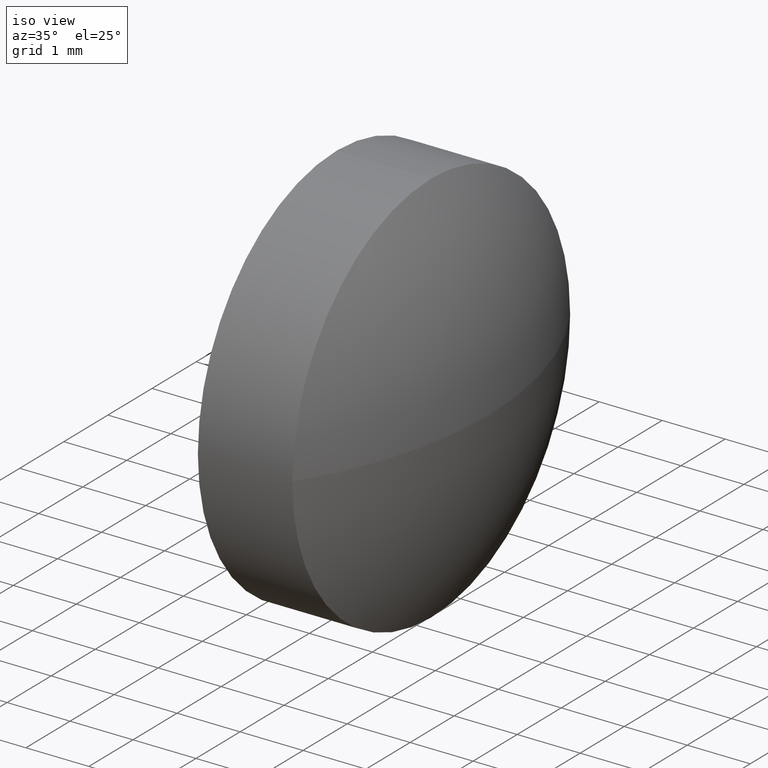
[diagram: clean part render]
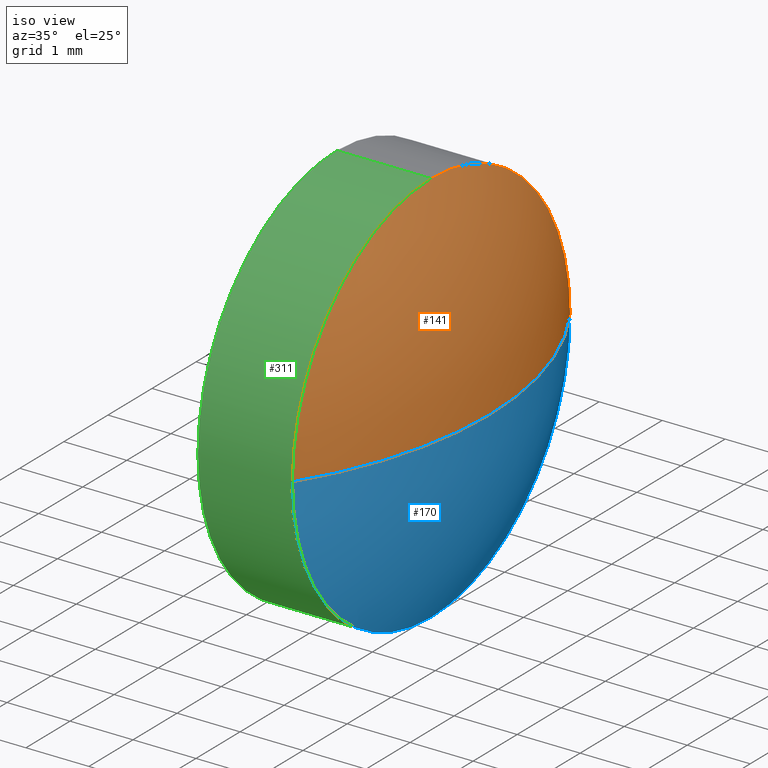
[diagram: same view with three faces highlighted in distinct colors, each labeled with its STEP entity id]
A machine part, iso view with three faces highlighted in distinct colors.
Their STEP definitions:

[orange] entity #141 — the highlighted spherical surface has radius 5.8596 mm.
#10 = DIRECTION ( 'NONE',  ( 0.0000000000000000000, 1.000000000000000000, 0.0000000000000000000 ) ) ;
#18 = CARTESIAN_POINT ( 'NONE',  ( 22.19444092659728800, 12.05837547940993200, 0.0000000000000000000 ) ) ;
#20 = AXIS2_PLACEMENT_3D ( 'NONE', #143, #70, #297 ) ;
#38 = CIRCLE ( 'NONE', #20, 3.150012600050391900 ) ;
#45 = EDGE_CURVE ( 'NONE', #178, #152, #38, .T. ) ;
#52 = CARTESIAN_POINT ( 'NONE',  ( 17.25356783924154800, 12.05837547940992500, 0.0000000000000000000 ) ) ;
#56 = DIRECTION ( 'NONE',  ( 0.0000000000000000000, 1.224646799147353200E-016, -1.000000000000000000 ) ) ;
#61 = AXIS2_PLACEMENT_3D ( 'NONE', #147, #175, #73 ) ;
#70 = DIRECTION ( 'NONE',  ( -1.000000000000000000, -0.0000000000000000000, -0.0000000000000000000 ) ) ;
#73 = DIRECTION ( 'NONE',  ( 1.000000000000000000, 0.0000000000000000000, 0.0000000000000000000 ) ) ;
#84 = EDGE_LOOP ( 'NONE', ( #139, #183, #91, #106 ) ) ;
#91 = ORIENTED_EDGE ( 'NONE', *, *, #45, .F. ) ;
#106 = ORIENTED_EDGE ( 'NONE', *, *, #259, .F. ) ;
#107 = AXIS2_PLACEMENT_3D ( 'NONE', #18, #119, #174 ) ;
#119 = DIRECTION ( 'NONE',  ( -1.000000000000000000, -0.0000000000000000000, -0.0000000000000000000 ) ) ;
#121 = DIRECTION ( 'NONE',  ( 0.0000000000000000000, 1.000000000000000000, 1.224646799147353000E-016 ) ) ;
#135 = DIRECTION ( 'NONE',  ( -0.0000000000000000000, 0.0000000000000000000, -1.000000000000000000 ) ) ;
#137 = CARTESIAN_POINT ( 'NONE',  ( 22.19444092659728800, 8.908362879359536600, -3.857652847925541000E-016 ) ) ;
#139 = ORIENTED_EDGE ( 'NONE', *, *, #232, .F. ) ;
#141 = ADVANCED_FACE ( 'NONE', ( #145 ), #235, .T. ) ;
#143 = CARTESIAN_POINT ( 'NONE',  ( 22.19444092659728800, 12.05837547940993200, 0.0000000000000000000 ) ) ;
#145 = FACE_OUTER_BOUND ( 'NONE', #84, .T. ) ;
#147 = CARTESIAN_POINT ( 'NONE',  ( 17.25356783924154800, 12.05837547940992500, 0.0000000000000000000 ) ) ;
#152 = VERTEX_POINT ( 'NONE', #197 ) ;
#172 = VERTEX_POINT ( 'NONE', #137 ) ;
#174 = DIRECTION ( 'NONE',  ( 0.0000000000000000000, 0.0000000000000000000, 1.000000000000000000 ) ) ;
#175 = DIRECTION ( 'NONE',  ( -0.0000000000000000000, 0.0000000000000000000, 1.000000000000000000 ) ) ;
#178 = VERTEX_POINT ( 'NONE', #201 ) ;
#183 = ORIENTED_EDGE ( 'NONE', *, *, #269, .T. ) ;
#197 = CARTESIAN_POINT ( 'NONE',  ( 22.19444092659728800, 15.20838807946032000, 0.0000000000000000000 ) ) ;
#199 = CIRCLE ( 'NONE', #107, 3.150012600050391900 ) ;
#201 = CARTESIAN_POINT ( 'NONE',  ( 22.19444092659728800, 12.05837547940993200, 3.150012600050391900 ) ) ;
#205 = CARTESIAN_POINT ( 'NONE',  ( 23.11315880157266300, 12.05837547940992500, 0.0000000000000000000 ) ) ;
#232 = EDGE_CURVE ( 'NONE', #265, #172, #298, .T. ) ;
#235 = SPHERICAL_SURFACE ( 'NONE', #267, 5.859590962331113300 ) ;
#259 = EDGE_CURVE ( 'NONE', #172, #178, #199, .T. ) ;
#265 = VERTEX_POINT ( 'NONE', #205 ) ;
#267 = AXIS2_PLACEMENT_3D ( 'NONE', #295, #135, #10 ) ;
#269 = EDGE_CURVE ( 'NONE', #265, #152, #277, .T. ) ;
#277 = CIRCLE ( 'NONE', #61, 5.859590962331115100 ) ;
#295 = CARTESIAN_POINT ( 'NONE',  ( 17.25356783924154800, 12.05837547940992500, 0.0000000000000000000 ) ) ;
#297 = DIRECTION ( 'NONE',  ( 0.0000000000000000000, 0.0000000000000000000, 1.000000000000000000 ) ) ;
#298 = CIRCLE ( 'NONE', #302, 5.859590962331115100 ) ;
#302 = AXIS2_PLACEMENT_3D ( 'NONE', #52, #56, #121 ) ;

[blue] entity #170 — the highlighted spherical surface has radius 5.8596 mm.
#8 = FACE_OUTER_BOUND ( 'NONE', #76, .T. ) ;
#28 = CIRCLE ( 'NONE', #117, 3.150012600050391900 ) ;
#48 = VERTEX_POINT ( 'NONE', #300 ) ;
#49 = ORIENTED_EDGE ( 'NONE', *, *, #203, .F. ) ;
#52 = CARTESIAN_POINT ( 'NONE',  ( 17.25356783924154800, 12.05837547940992500, 0.0000000000000000000 ) ) ;
#56 = DIRECTION ( 'NONE',  ( 0.0000000000000000000, 1.224646799147353200E-016, -1.000000000000000000 ) ) ;
#61 = AXIS2_PLACEMENT_3D ( 'NONE', #147, #175, #73 ) ;
#73 = DIRECTION ( 'NONE',  ( 1.000000000000000000, 0.0000000000000000000, 0.0000000000000000000 ) ) ;
#76 = EDGE_LOOP ( 'NONE', ( #168, #230, #49, #331 ) ) ;
#78 = DIRECTION ( 'NONE',  ( -1.000000000000000000, -0.0000000000000000000, -0.0000000000000000000 ) ) ;
#102 = DIRECTION ( 'NONE',  ( 0.0000000000000000000, 0.0000000000000000000, 1.000000000000000000 ) ) ;
#117 = AXIS2_PLACEMENT_3D ( 'NONE', #338, #336, #310 ) ;
#121 = DIRECTION ( 'NONE',  ( 0.0000000000000000000, 1.000000000000000000, 1.224646799147353000E-016 ) ) ;
#134 = CIRCLE ( 'NONE', #140, 3.150012600050391900 ) ;
#137 = CARTESIAN_POINT ( 'NONE',  ( 22.19444092659728800, 8.908362879359536600, -3.857652847925541000E-016 ) ) ;
#140 = AXIS2_PLACEMENT_3D ( 'NONE', #185, #78, #102 ) ;
#147 = CARTESIAN_POINT ( 'NONE',  ( 17.25356783924154800, 12.05837547940992500, 0.0000000000000000000 ) ) ;
#152 = VERTEX_POINT ( 'NONE', #197 ) ;
#168 = ORIENTED_EDGE ( 'NONE', *, *, #269, .F. ) ;
#170 = ADVANCED_FACE ( 'NONE', ( #8 ), #314, .T. ) ;
#172 = VERTEX_POINT ( 'NONE', #137 ) ;
#175 = DIRECTION ( 'NONE',  ( -0.0000000000000000000, 0.0000000000000000000, 1.000000000000000000 ) ) ;
#177 = DIRECTION ( 'NONE',  ( -0.0000000000000000000, 0.0000000000000000000, -1.000000000000000000 ) ) ;
#179 = AXIS2_PLACEMENT_3D ( 'NONE', #333, #177, #249 ) ;
#185 = CARTESIAN_POINT ( 'NONE',  ( 22.19444092659728800, 12.05837547940993200, 0.0000000000000000000 ) ) ;
#197 = CARTESIAN_POINT ( 'NONE',  ( 22.19444092659728800, 15.20838807946032000, 0.0000000000000000000 ) ) ;
#203 = EDGE_CURVE ( 'NONE', #48, #172, #28, .T. ) ;
#205 = CARTESIAN_POINT ( 'NONE',  ( 23.11315880157266300, 12.05837547940992500, 0.0000000000000000000 ) ) ;
#230 = ORIENTED_EDGE ( 'NONE', *, *, #232, .T. ) ;
#232 = EDGE_CURVE ( 'NONE', #265, #172, #298, .T. ) ;
#249 = DIRECTION ( 'NONE',  ( 0.0000000000000000000, 1.000000000000000000, 0.0000000000000000000 ) ) ;
#265 = VERTEX_POINT ( 'NONE', #205 ) ;
#269 = EDGE_CURVE ( 'NONE', #265, #152, #277, .T. ) ;
#277 = CIRCLE ( 'NONE', #61, 5.859590962331115100 ) ;
#298 = CIRCLE ( 'NONE', #302, 5.859590962331115100 ) ;
#300 = CARTESIAN_POINT ( 'NONE',  ( 22.19444092659728800, 12.05837547940993200, -3.150012600050391900 ) ) ;
#302 = AXIS2_PLACEMENT_3D ( 'NONE', #52, #56, #121 ) ;
#310 = DIRECTION ( 'NONE',  ( 0.0000000000000000000, 0.0000000000000000000, 1.000000000000000000 ) ) ;
#314 = SPHERICAL_SURFACE ( 'NONE', #179, 5.859590962331113300 ) ;
#331 = ORIENTED_EDGE ( 'NONE', *, *, #335, .F. ) ;
#333 = CARTESIAN_POINT ( 'NONE',  ( 17.25356783924154800, 12.05837547940992500, 0.0000000000000000000 ) ) ;
#335 = EDGE_CURVE ( 'NONE', #152, #48, #134, .T. ) ;
#336 = DIRECTION ( 'NONE',  ( -1.000000000000000000, -0.0000000000000000000, -0.0000000000000000000 ) ) ;
#338 = CARTESIAN_POINT ( 'NONE',  ( 22.19444092659728800, 12.05837547940993200, 0.0000000000000000000 ) ) ;

[green] entity #311 — the highlighted cylindrical surface (partial cylindrical patch) has radius 3.15 mm, axis along (-1, -0, -0).
#5 = LINE ( 'NONE', #196, #64 ) ;
#7 = AXIS2_PLACEMENT_3D ( 'NONE', #19, #306, #342 ) ;
#14 = AXIS2_PLACEMENT_3D ( 'NONE', #307, #120, #228 ) ;
#16 = CARTESIAN_POINT ( 'NONE',  ( 20.69444092659728800, 12.05837547940993200, 3.150012600050391900 ) ) ;
#17 = FACE_OUTER_BOUND ( 'NONE', #209, .T. ) ;
#18 = CARTESIAN_POINT ( 'NONE',  ( 22.19444092659728800, 12.05837547940993200, 0.0000000000000000000 ) ) ;
#19 = CARTESIAN_POINT ( 'NONE',  ( 20.69444092659728800, 12.05837547940993200, 0.0000000000000000000 ) ) ;
#28 = CIRCLE ( 'NONE', #117, 3.150012600050391900 ) ;
#39 = ORIENTED_EDGE ( 'NONE', *, *, #259, .T. ) ;
#41 = CARTESIAN_POINT ( 'NONE',  ( 18.26476809820352200, 12.05837547940993200, -3.150012600050391900 ) ) ;
#48 = VERTEX_POINT ( 'NONE', #300 ) ;
#50 = DIRECTION ( 'NONE',  ( -1.000000000000000000, -0.0000000000000000000, -0.0000000000000000000 ) ) ;
#53 = CARTESIAN_POINT ( 'NONE',  ( 20.69444092659728800, 12.05837547940993200, -3.150012600050391900 ) ) ;
#64 = VECTOR ( 'NONE', #171, 1000.000000000000000 ) ;
#65 = VERTEX_POINT ( 'NONE', #68 ) ;
#66 = EDGE_CURVE ( 'NONE', #178, #273, #5, .T. ) ;
#67 = CYLINDRICAL_SURFACE ( 'NONE', #14, 3.150012600050391900 ) ;
#68 = CARTESIAN_POINT ( 'NONE',  ( 20.69444092659728800, 8.908362879359534900, -3.857652847925542500E-016 ) ) ;
#75 = EDGE_CURVE ( 'NONE', #65, #273, #304, .T. ) ;
#88 = CIRCLE ( 'NONE', #7, 3.150012600050391900 ) ;
#96 = DIRECTION ( 'NONE',  ( -1.000000000000000000, -0.0000000000000000000, -0.0000000000000000000 ) ) ;
#103 = AXIS2_PLACEMENT_3D ( 'NONE', #275, #50, #270 ) ;
#104 = ORIENTED_EDGE ( 'NONE', *, *, #288, .F. ) ;
#107 = AXIS2_PLACEMENT_3D ( 'NONE', #18, #119, #174 ) ;
#117 = AXIS2_PLACEMENT_3D ( 'NONE', #338, #336, #310 ) ;
#119 = DIRECTION ( 'NONE',  ( -1.000000000000000000, -0.0000000000000000000, -0.0000000000000000000 ) ) ;
#120 = DIRECTION ( 'NONE',  ( -1.000000000000000000, -0.0000000000000000000, -0.0000000000000000000 ) ) ;
#137 = CARTESIAN_POINT ( 'NONE',  ( 22.19444092659728800, 8.908362879359536600, -3.857652847925541000E-016 ) ) ;
#156 = VECTOR ( 'NONE', #96, 1000.000000000000000 ) ;
#164 = LINE ( 'NONE', #41, #156 ) ;
#171 = DIRECTION ( 'NONE',  ( -1.000000000000000000, -0.0000000000000000000, -0.0000000000000000000 ) ) ;
#172 = VERTEX_POINT ( 'NONE', #137 ) ;
#173 = ORIENTED_EDGE ( 'NONE', *, *, #75, .F. ) ;
#174 = DIRECTION ( 'NONE',  ( 0.0000000000000000000, 0.0000000000000000000, 1.000000000000000000 ) ) ;
#178 = VERTEX_POINT ( 'NONE', #201 ) ;
#186 = EDGE_CURVE ( 'NONE', #48, #258, #164, .T. ) ;
#196 = CARTESIAN_POINT ( 'NONE',  ( 18.26476809820352200, 12.05837547940993200, 3.150012600050391900 ) ) ;
#199 = CIRCLE ( 'NONE', #107, 3.150012600050391900 ) ;
#201 = CARTESIAN_POINT ( 'NONE',  ( 22.19444092659728800, 12.05837547940993200, 3.150012600050391900 ) ) ;
#203 = EDGE_CURVE ( 'NONE', #48, #172, #28, .T. ) ;
#209 = EDGE_LOOP ( 'NONE', ( #247, #221, #39, #222, #173, #104 ) ) ;
#221 = ORIENTED_EDGE ( 'NONE', *, *, #203, .T. ) ;
#222 = ORIENTED_EDGE ( 'NONE', *, *, #66, .T. ) ;
#228 = DIRECTION ( 'NONE',  ( 0.0000000000000000000, 0.0000000000000000000, 1.000000000000000000 ) ) ;
#247 = ORIENTED_EDGE ( 'NONE', *, *, #186, .F. ) ;
#258 = VERTEX_POINT ( 'NONE', #53 ) ;
#259 = EDGE_CURVE ( 'NONE', #172, #178, #199, .T. ) ;
#270 = DIRECTION ( 'NONE',  ( 0.0000000000000000000, 0.0000000000000000000, 1.000000000000000000 ) ) ;
#273 = VERTEX_POINT ( 'NONE', #16 ) ;
#275 = CARTESIAN_POINT ( 'NONE',  ( 20.69444092659728800, 12.05837547940993200, 0.0000000000000000000 ) ) ;
#288 = EDGE_CURVE ( 'NONE', #258, #65, #88, .T. ) ;
#300 = CARTESIAN_POINT ( 'NONE',  ( 22.19444092659728800, 12.05837547940993200, -3.150012600050391900 ) ) ;
#304 = CIRCLE ( 'NONE', #103, 3.150012600050391900 ) ;
#306 = DIRECTION ( 'NONE',  ( -1.000000000000000000, -0.0000000000000000000, -0.0000000000000000000 ) ) ;
#307 = CARTESIAN_POINT ( 'NONE',  ( 18.26476809820352200, 12.05837547940993200, 0.0000000000000000000 ) ) ;
#310 = DIRECTION ( 'NONE',  ( 0.0000000000000000000, 0.0000000000000000000, 1.000000000000000000 ) ) ;
#311 = ADVANCED_FACE ( 'NONE', ( #17 ), #67, .T. ) ;
#336 = DIRECTION ( 'NONE',  ( -1.000000000000000000, -0.0000000000000000000, -0.0000000000000000000 ) ) ;
#338 = CARTESIAN_POINT ( 'NONE',  ( 22.19444092659728800, 12.05837547940993200, 0.0000000000000000000 ) ) ;
#342 = DIRECTION ( 'NONE',  ( 0.0000000000000000000, 0.0000000000000000000, 1.000000000000000000 ) ) ;